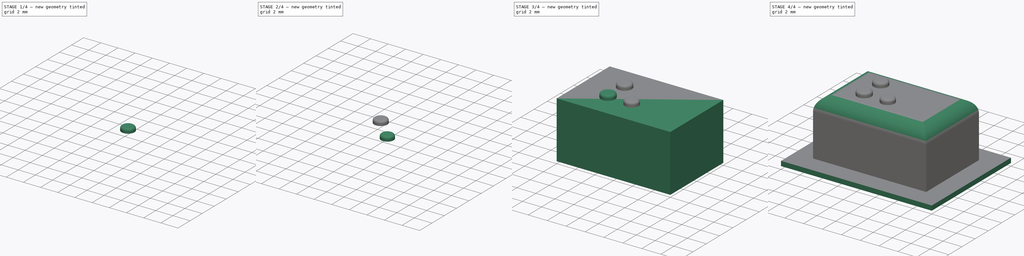
[diagram: build sequence overview — one tinted view per stage of 4, left to right]
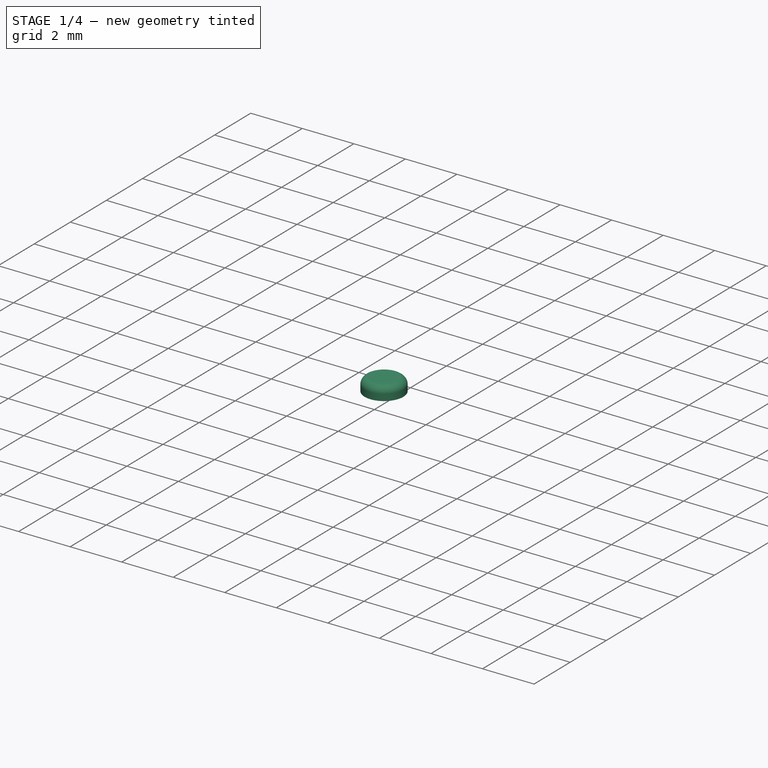
[diagram: stage 1 of 4 — iso view after this stage's code; geometry added in this stage tinted green]
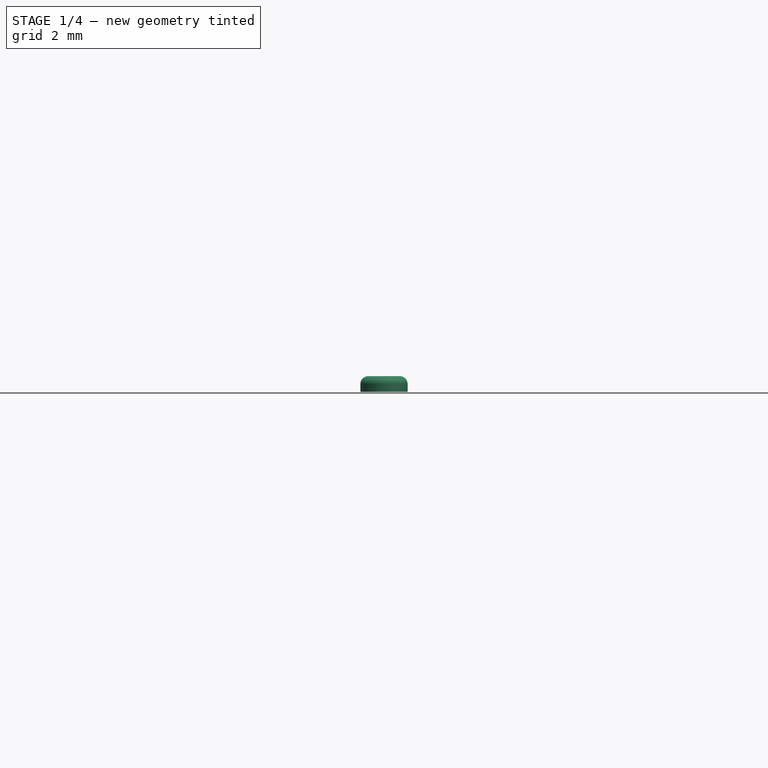
[diagram: stage 1 of 4 — front view after this stage's code; geometry added in this stage tinted green]
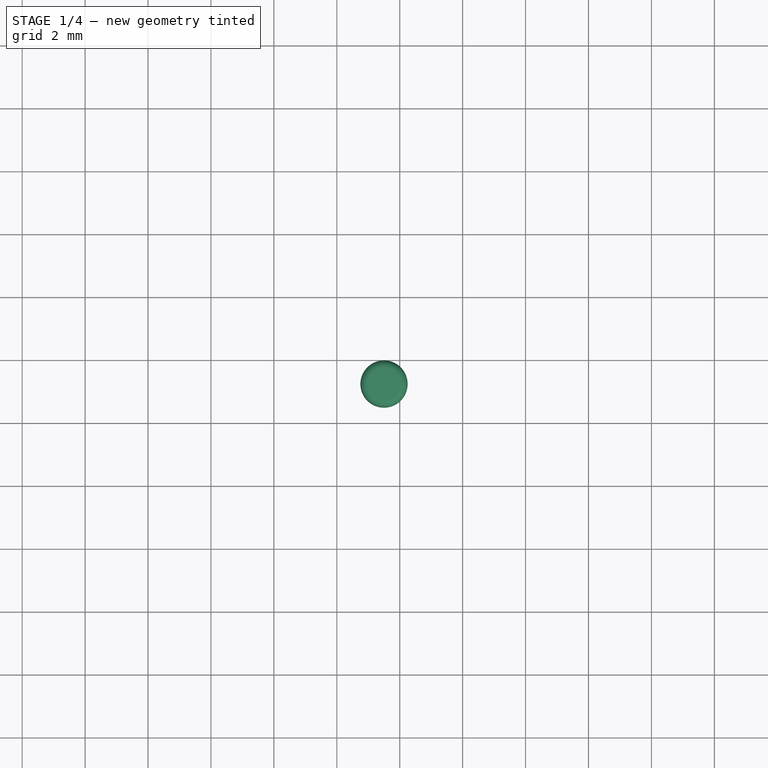
[diagram: stage 1 of 4 — top view after this stage's code; geometry added in this stage tinted green]
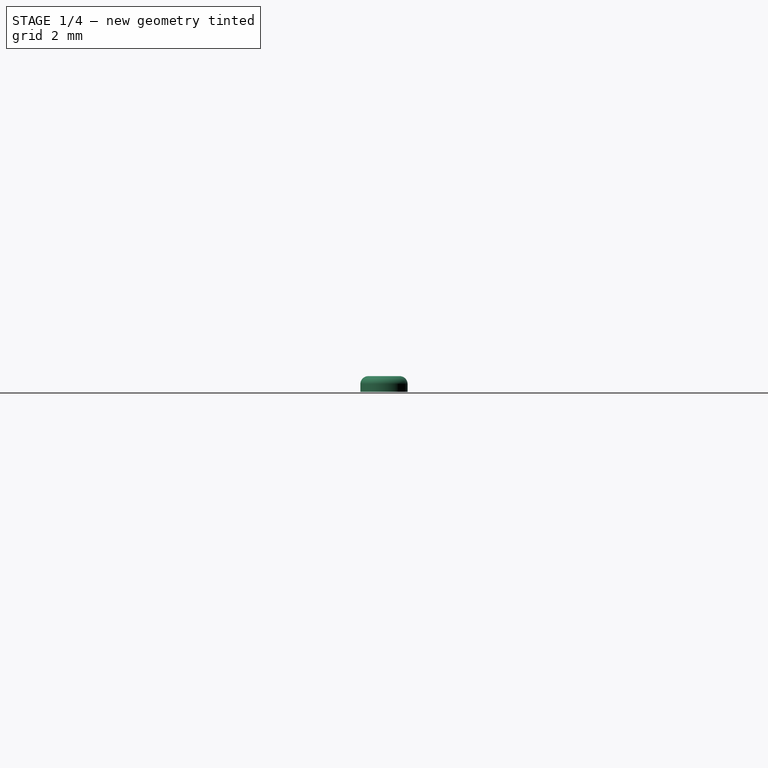
[diagram: stage 1 of 4 — right view after this stage's code; geometry added in this stage tinted green]
FCSTD DOCUMENT  (FreeCAD 0.16R6706 (Git))
Label: Button_2.0_Braille_Number6
License: All rights reserved
LicenseURL: http://en.wikipedia.org/wiki/All_rights_reserved
objects: Sketcher::SketchObject×5, PartDesign::Pad×5, PartDesign::Fillet×4
note: 19 computed .brp shape members not serialized (recipe doc carries the construction recipe); baked Part::Feature solids carry a one-line shape summary decoded from their .brp

FEATURE [Sketcher::SketchObject] Sketch004
  Placement = pos=(0,0,6.5) rot=(0,0,1;0rad)
  sketch-geometry (1):
    g0: Circle CenterX=5.5 CenterY=7.25 CenterZ=0 NormalX=0 NormalY=0 NormalZ=1 Radius=0.75
  constraints (3):
    c: DistanceY(g-1,g0) = 7.25
    c: DistanceX(g-1,g0) = 5.5
    c: Radius(g0) = 0.75
FEATURE [PartDesign::Pad] Pad004
  Length = 0.5
  Length2 = 100
  Placement = pos=(0,0,6.5) rot=(0,0,1;0rad)
  Sketch = -> Sketch004
  Type = 0
FEATURE [PartDesign::Fillet] Fillet003
  Base = -> Pad004 [Edge3]
  Placement = pos=(0,0,6.5) rot=(0,0,1;0rad)
  Radius = 0.25
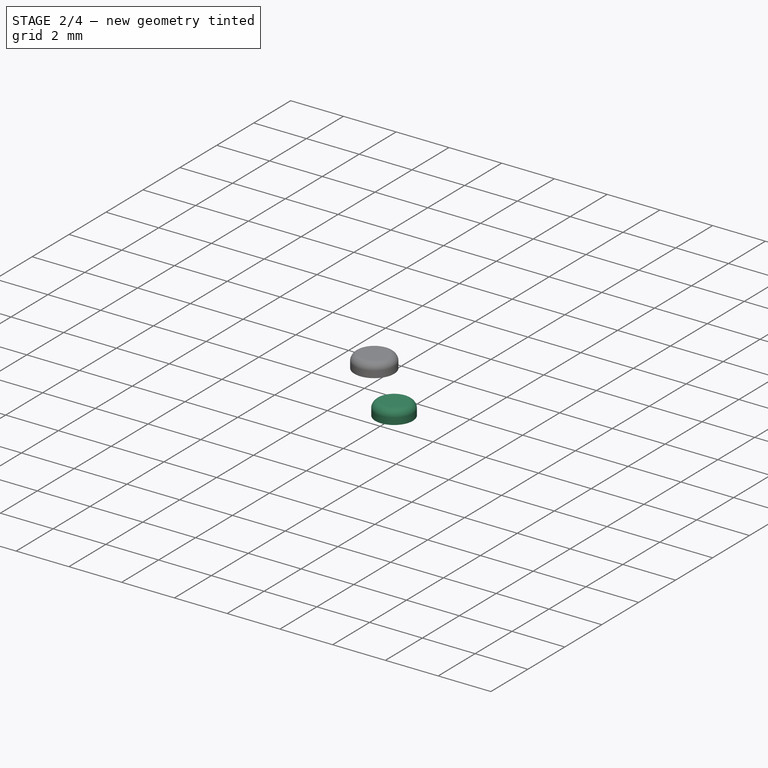
[diagram: stage 2 of 4 — iso view after this stage's code; geometry added in this stage tinted green]
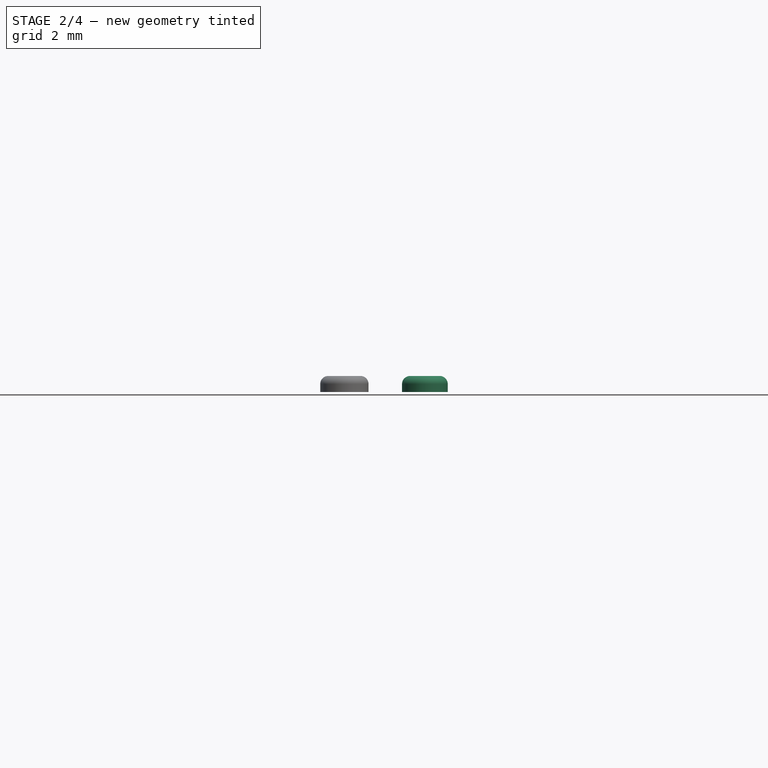
[diagram: stage 2 of 4 — front view after this stage's code; geometry added in this stage tinted green]
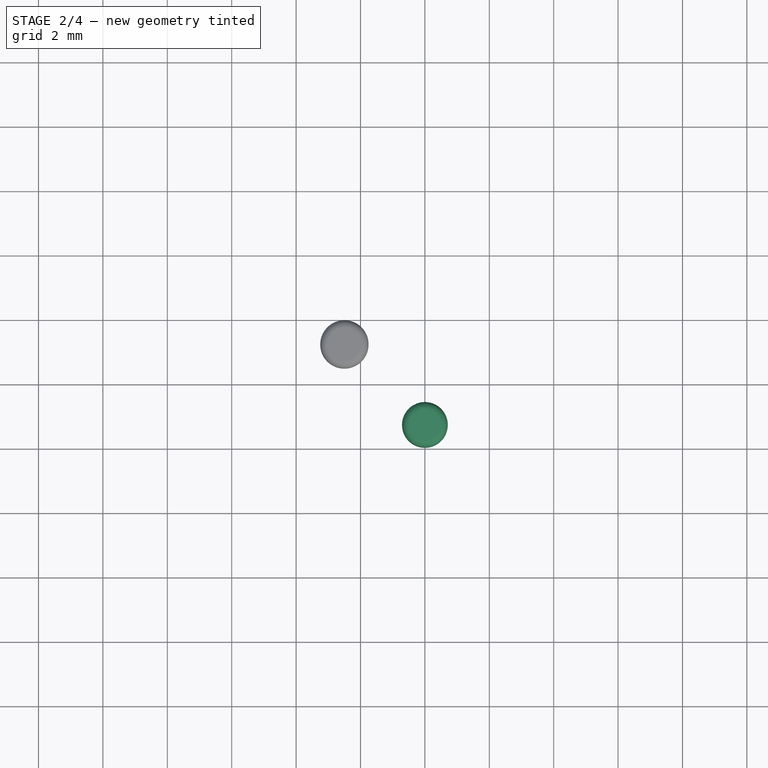
[diagram: stage 2 of 4 — top view after this stage's code; geometry added in this stage tinted green]
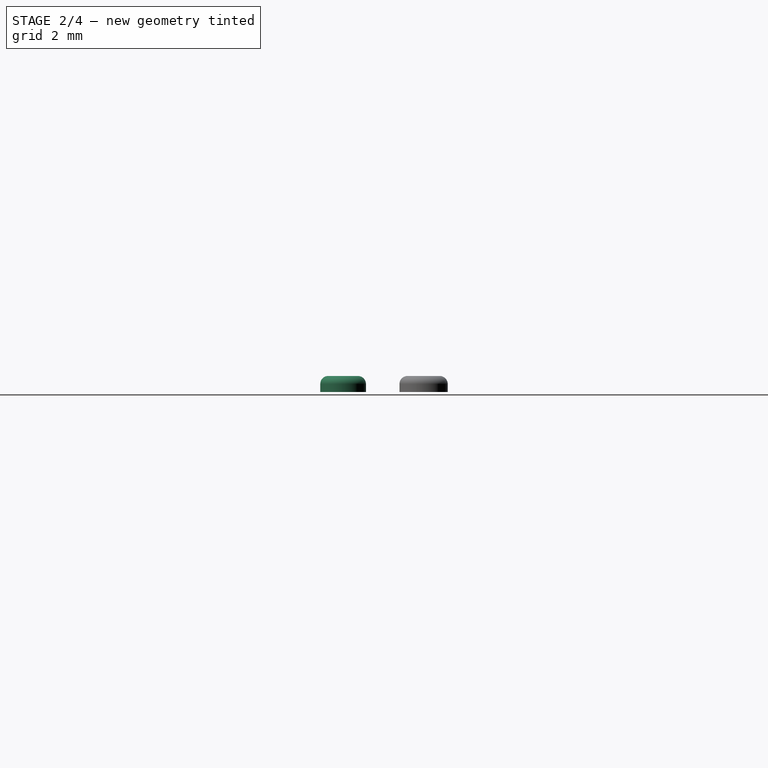
[diagram: stage 2 of 4 — right view after this stage's code; geometry added in this stage tinted green]
FEATURE [Sketcher::SketchObject] Sketch003
  Placement = pos=(0,0,6.5) rot=(0,0,1;0rad)
  sketch-geometry (1):
    g0: Circle CenterX=8 CenterY=4.75 CenterZ=0 NormalX=0 NormalY=0 NormalZ=1 Radius=0.709805
  constraints (2):
    c: DistanceX(g-1,g0) = 8
    c: DistanceY(g-1,g0) = 4.75
FEATURE [PartDesign::Pad] Pad003
  Length = 0.5
  Length2 = 100
  Placement = pos=(0,0,6.5) rot=(0,0,1;0rad)
  Sketch = -> Sketch003
  Type = 0
FEATURE [PartDesign::Fillet] Fillet002
  Base = -> Pad003 [Edge3]
  Placement = pos=(0,0,6.5) rot=(0,0,1;0rad)
  Radius = 0.25
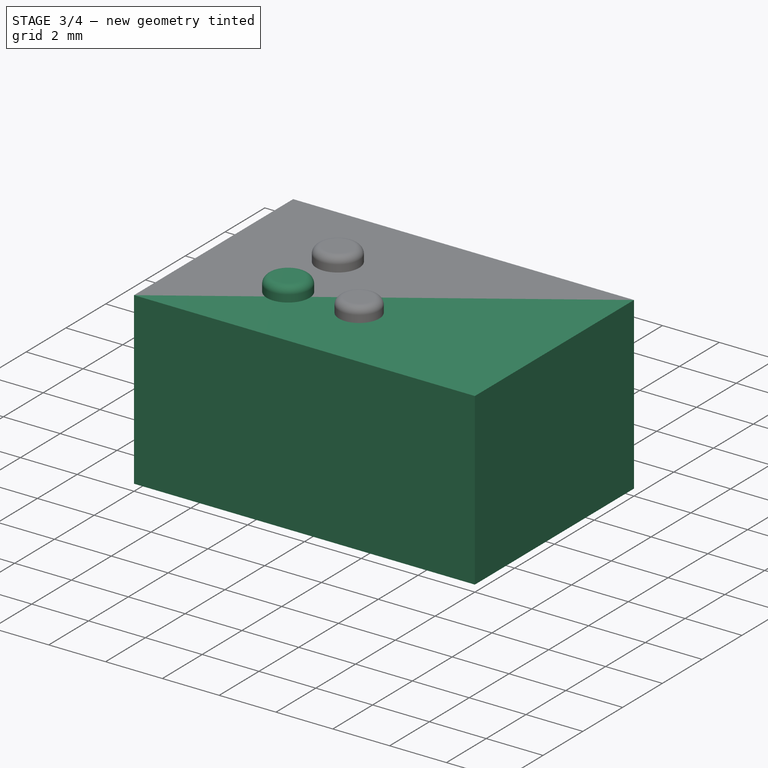
[diagram: stage 3 of 4 — iso view after this stage's code; geometry added in this stage tinted green]
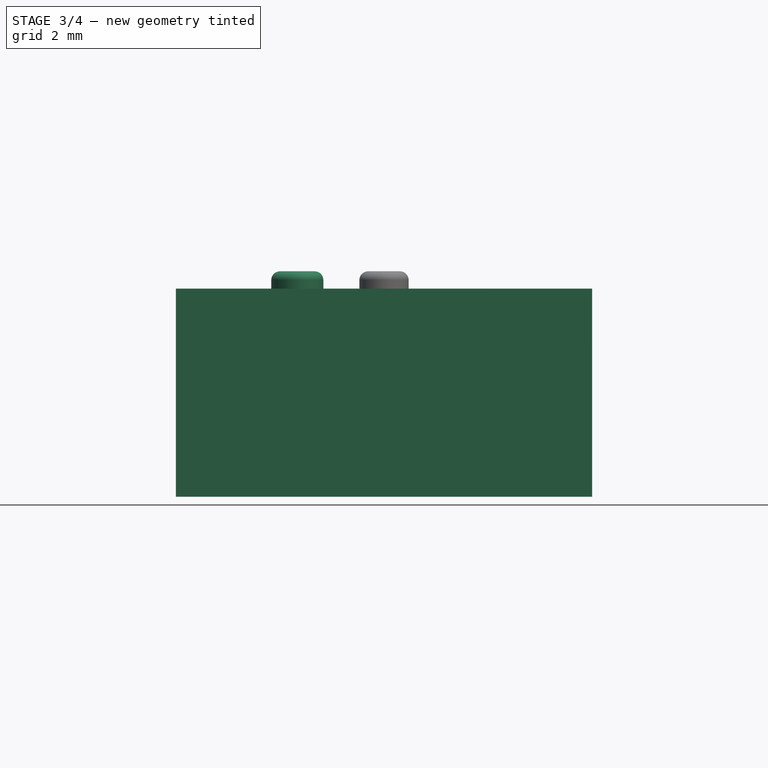
[diagram: stage 3 of 4 — front view after this stage's code; geometry added in this stage tinted green]
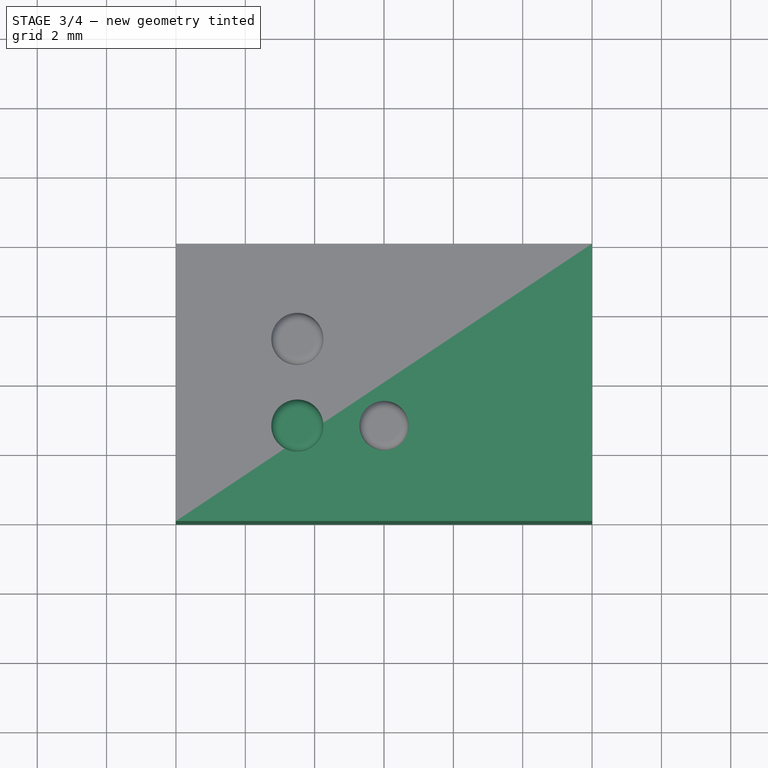
[diagram: stage 3 of 4 — top view after this stage's code; geometry added in this stage tinted green]
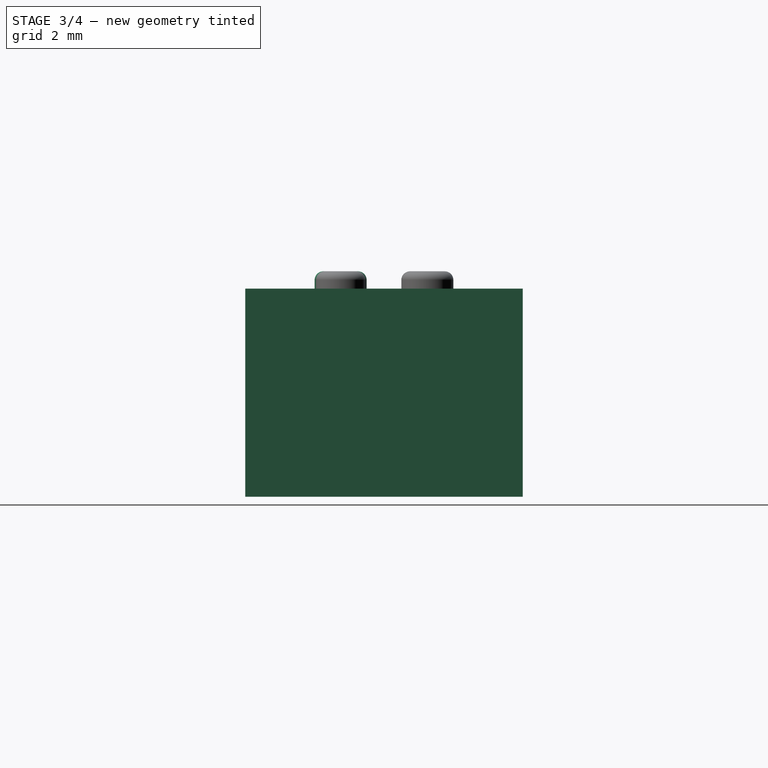
[diagram: stage 3 of 4 — right view after this stage's code; geometry added in this stage tinted green]
FEATURE [Sketcher::SketchObject] Sketch001
  Placement = pos=(0,0,0.5) rot=(0,0,1;0rad)
  sketch-geometry (4):
    g0: LineSegment StartX=2 StartY=10 StartZ=0 EndX=14 EndY=10 EndZ=0
    g1: LineSegment StartX=14 StartY=10 StartZ=0 EndX=14 EndY=2 EndZ=0
    g2: LineSegment StartX=14 StartY=2 StartZ=0 EndX=2 EndY=2 EndZ=0
    g3: LineSegment StartX=2 StartY=2 StartZ=0 EndX=2 EndY=10 EndZ=0
  constraints (12):
    c: Coincident(g0,g1)
    c: Coincident(g1,g2)
    c: Coincident(g2,g3)
    c: Coincident(g3,g0)
    c: Horizontal(g0)
    c: Horizontal(g2)
    c: Vertical(g1)
    c: Vertical(g3)
    c: DistanceX(g0,g0) = 12
    c: DistanceY(g2,g0) = 8
    c: DistanceX(g-1,g2) = 2
    c: DistanceY(g-1,g2) = 2
FEATURE [PartDesign::Pad] Pad001
  Length = 6
  Length2 = 100
  Placement = pos=(0,0,0.5) rot=(0,0,1;0rad)
  Sketch = -> Sketch001
  Type = 0
FEATURE [Sketcher::SketchObject] Sketch002
  Placement = pos=(0,0,6.5) rot=(0,0,1;0rad)
  sketch-geometry (1):
    g0: Circle CenterX=5.5 CenterY=4.75 CenterZ=0 NormalX=0 NormalY=0 NormalZ=1 Radius=0.75
  constraints (3):
    c: Radius(g0) = 0.75
    c: DistanceX(g-1,g0) = 5.5
    c: DistanceY(g-1,g0) = 4.75
FEATURE [PartDesign::Pad] Pad002  label="Braille1"
  Length = 0.5
  Length2 = 100
  Placement = pos=(0,0,6.5) rot=(0,0,1;0rad)
  Sketch = -> Sketch002
  Type = 0
FEATURE [PartDesign::Fillet] Fillet001
  Base = -> Pad002 [Edge3]
  Placement = pos=(0,0,6.5) rot=(0,0,1;0rad)
  Radius = 0.25
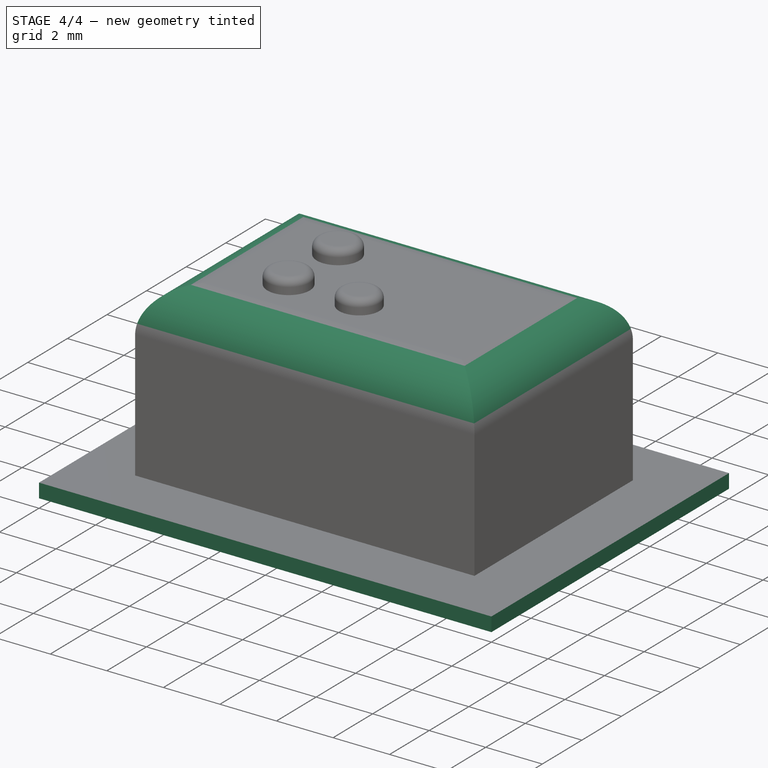
[diagram: stage 4 of 4 — iso view after this stage's code; geometry added in this stage tinted green]
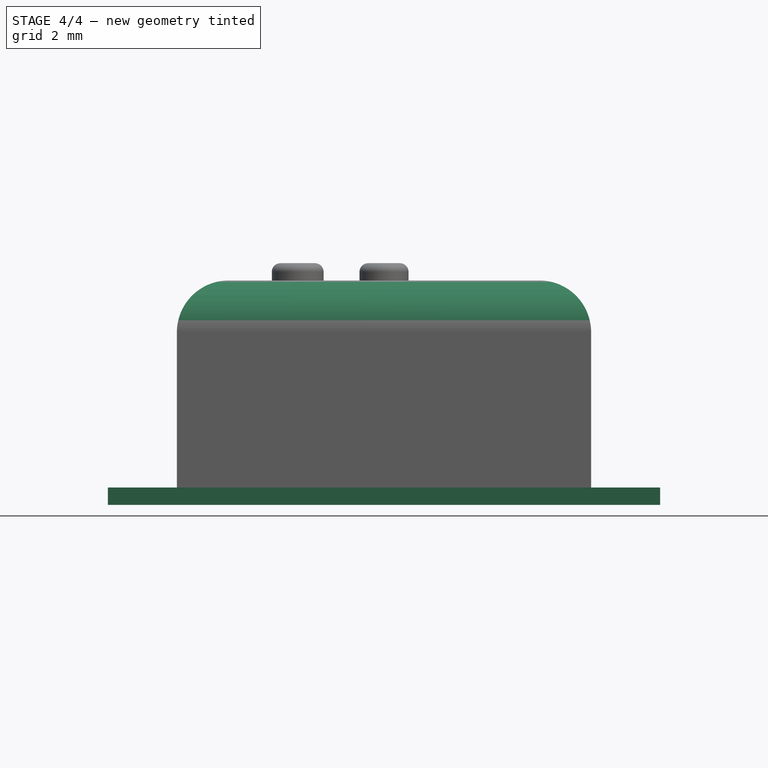
[diagram: stage 4 of 4 — front view after this stage's code; geometry added in this stage tinted green]
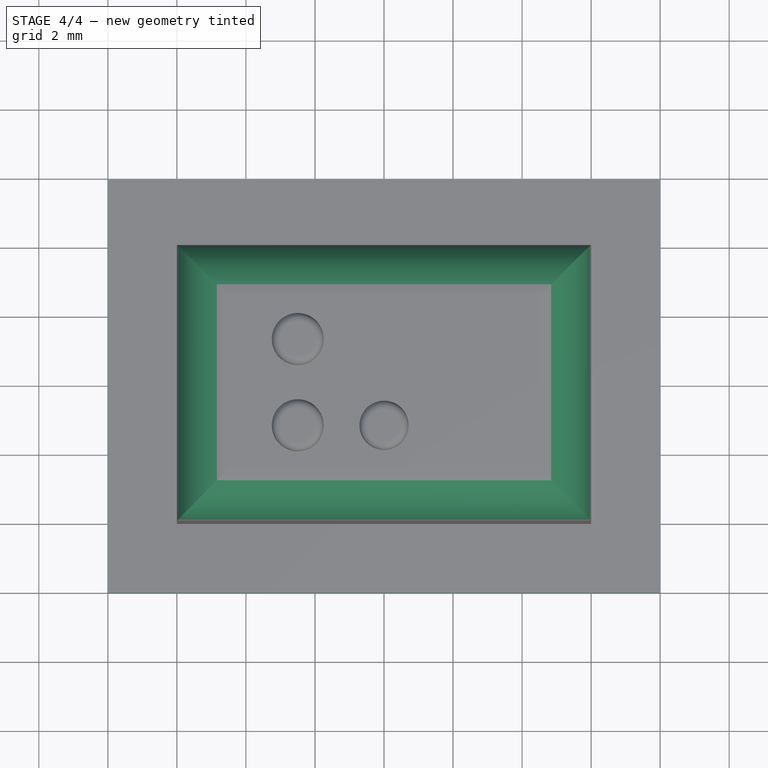
[diagram: stage 4 of 4 — top view after this stage's code; geometry added in this stage tinted green]
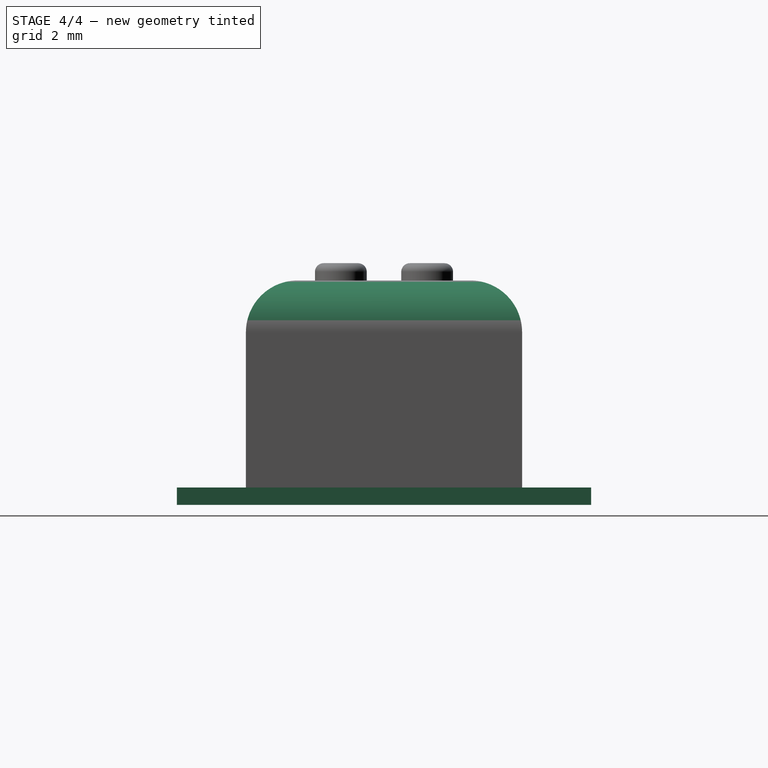
[diagram: stage 4 of 4 — right view after this stage's code; geometry added in this stage tinted green]
FEATURE [Sketcher::SketchObject] Sketch
  sketch-geometry (4):
    g0: LineSegment StartX=0 StartY=0 StartZ=0 EndX=16 EndY=0 EndZ=0
    g1: LineSegment StartX=16 StartY=0 StartZ=0 EndX=16 EndY=12 EndZ=0
    g2: LineSegment StartX=16 StartY=12 StartZ=0 EndX=0 EndY=12 EndZ=0
    g3: LineSegment StartX=0 StartY=12 StartZ=0 EndX=0 EndY=0 EndZ=0
  constraints (12):
    c: Coincident(g0,g1)
    c: Coincident(g1,g2)
    c: Coincident(g2,g3)
    c: Coincident(g3,g0)
    c: Horizontal(g0)
    c: Horizontal(g2)
    c: Vertical(g1)
    c: Vertical(g3)
    c: Coincident(g0,g-1)
    c: DistanceX(g2,g1) = 16
    c: DistanceY(g0,g1) = 12
    c: DistanceX(g-1,g-1) = 0
FEATURE [PartDesign::Pad] Pad
  Length = 0.5
  Length2 = 100
  Sketch = -> Sketch
  Type = 0
FEATURE [PartDesign::Fillet] Fillet
  Base = -> Pad001 [Edge10,Edge7,Edge4,Edge12]
  Placement = pos=(0,0,0.5) rot=(0,0,1;0rad)
  Radius = 1.5
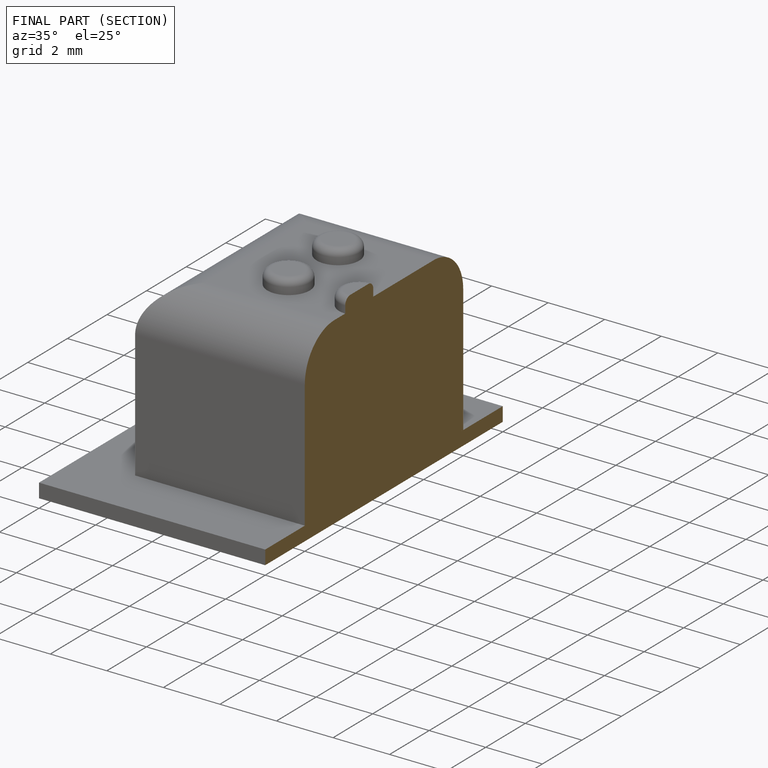
[diagram: finished part — half-section view (interior)]
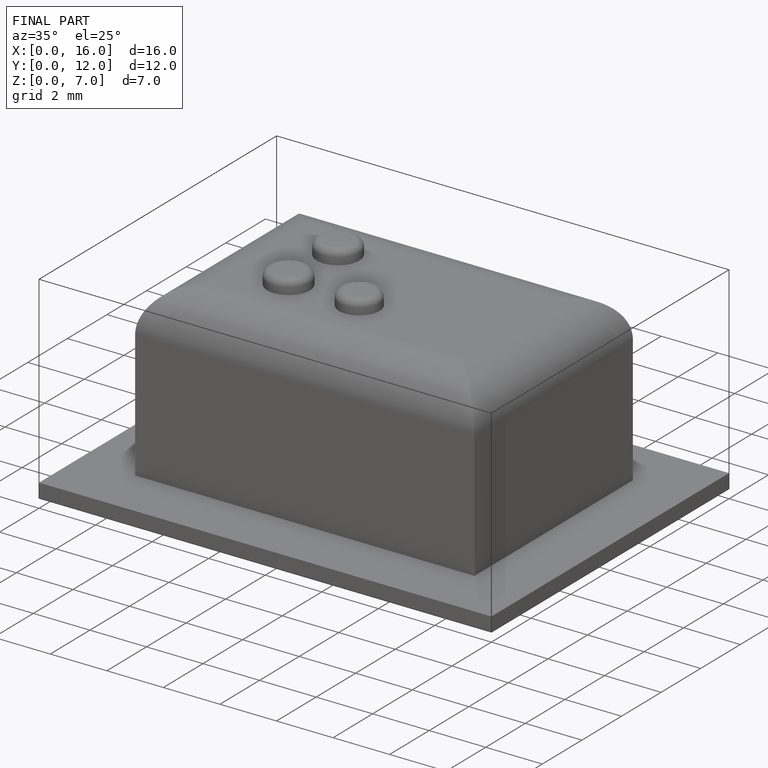
[diagram: finished part — iso view with bounding-box wireframe]
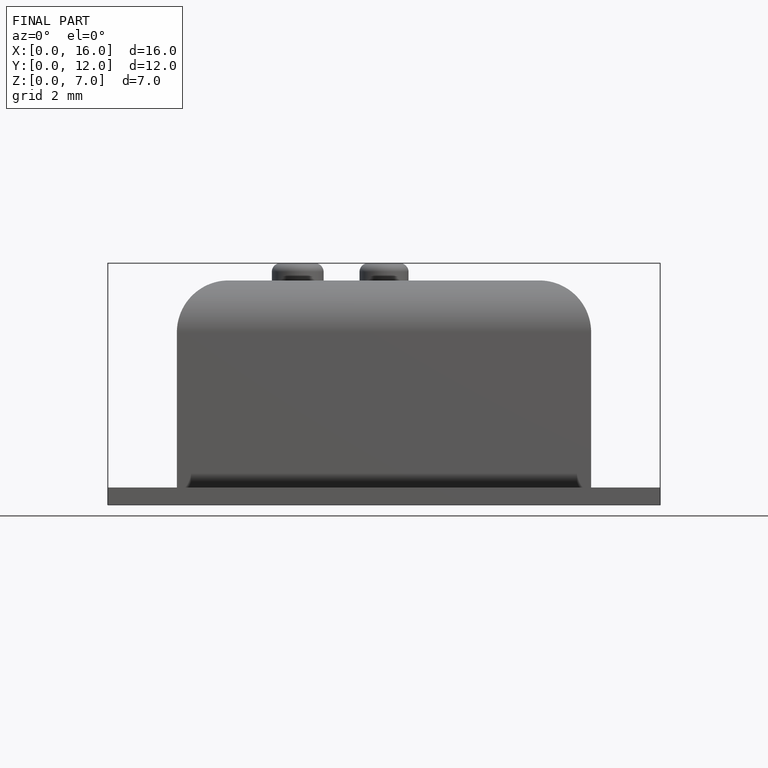
[diagram: finished part — front view with bounding-box wireframe]
